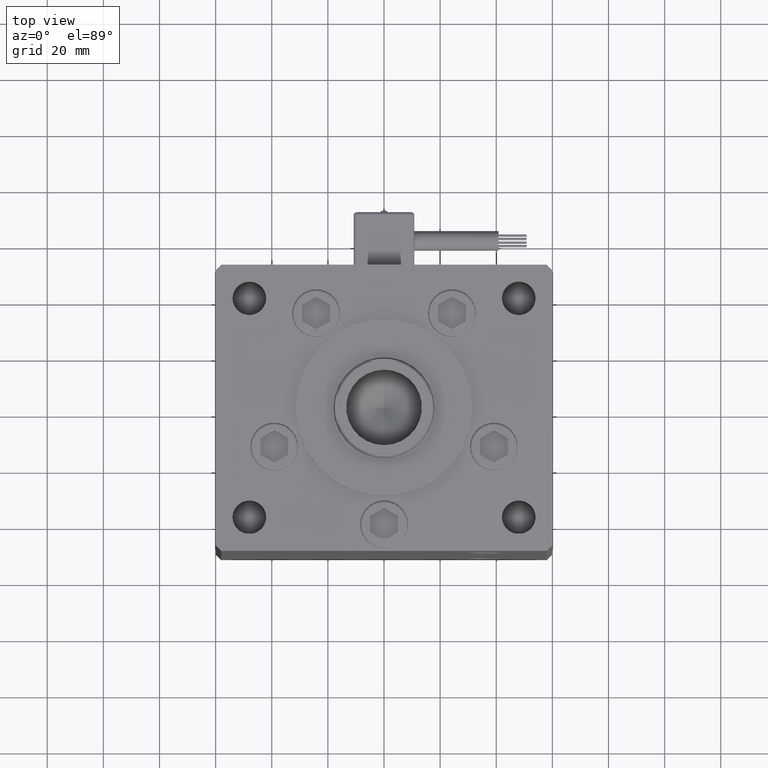
[diagram: clean part render]
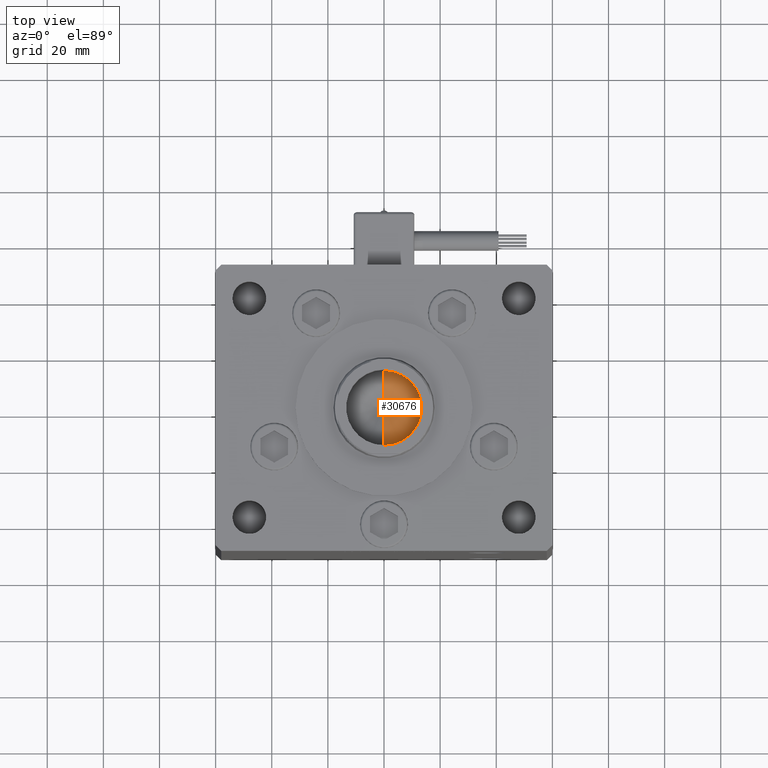
[diagram: same view with one face highlighted and labeled with its STEP entity id]
A machine part, top view. The second image highlights one B-rep face of the part: STEP entity #30676.
In plain terms, the highlighted conical surface has half-angle 59 deg.
Its self-contained STEP definition (entity closure, byte-faithful):
#215 = CONICAL_SURFACE ( 'NONE', #46276, 13.49999999999999467, 1.029744258676653867 ) ;
#343 = CARTESIAN_POINT ( 'NONE',  ( -22.39000000000000057, 1.653273178848926275E-15, 13.49999999999999467 ) ) ;
#1331 = ORIENTED_EDGE ( 'NONE', *, *, #20986, .F. ) ;
#7166 = CARTESIAN_POINT ( 'NONE',  ( -30.50161835687206846, -7.088805540759547745E-15, 0.000000000000000000 ) ) ;
#8952 = VERTEX_POINT ( 'NONE', #42750 ) ;
#13092 = VECTOR ( 'NONE', #17835, 1000.000000000000000 ) ;
#14017 = EDGE_CURVE ( 'NONE', #39150, #33043, #39454, .T. ) ;
#17835 = DIRECTION ( 'NONE',  ( 0.5150380749100547106, 1.049727191138618326E-16, 0.8571673007021120005 ) ) ;
#20986 = EDGE_CURVE ( 'NONE', #39150, #8952, #35700, .T. ) ;
#21264 = VECTOR ( 'NONE', #44039, 1000.000000000000000 ) ;
#22054 = CARTESIAN_POINT ( 'NONE',  ( -22.39000000000000057, 1.653273178848926275E-15, 13.49999999999999467 ) ) ;
#25968 = CARTESIAN_POINT ( 'NONE',  ( -22.39000000000000057, 0.000000000000000000, 0.000000000000000000 ) ) ;
#26197 = ORIENTED_EDGE ( 'NONE', *, *, #44748, .T. ) ;
#30400 = EDGE_LOOP ( 'NONE', ( #1331, #49383, #26197 ) ) ;
#30676 = ADVANCED_FACE ( 'NONE', ( #47327 ), #215, .F. ) ;
#33043 = VERTEX_POINT ( 'NONE', #22054 ) ;
#35700 = LINE ( 'NONE', #47649, #21264 ) ;
#39150 = VERTEX_POINT ( 'NONE', #7166 ) ;
#39454 = LINE ( 'NONE', #343, #13092 ) ;
#40567 = CIRCLE ( 'NONE', #47634, 13.49999999999999467 ) ;
#42750 = CARTESIAN_POINT ( 'NONE',  ( -22.39000000000000057, 0.000000000000000000, -13.49999999999999467 ) ) ;
#42888 = DIRECTION ( 'NONE',  ( 0.000000000000000000, 0.000000000000000000, -1.000000000000000000 ) ) ;
#44039 = DIRECTION ( 'NONE',  ( 0.5150380749100547106, 0.000000000000000000, -0.8571673007021120005 ) ) ;
#44391 = DIRECTION ( 'NONE',  ( 1.000000000000000000, -0.000000000000000000, -0.000000000000000000 ) ) ;
#44748 = EDGE_CURVE ( 'NONE', #33043, #8952, #40567, .T. ) ;
#46276 = AXIS2_PLACEMENT_3D ( 'NONE', #25968, #51748, #42888 ) ;
#47327 = FACE_OUTER_BOUND ( 'NONE', #30400, .T. ) ;
#47634 = AXIS2_PLACEMENT_3D ( 'NONE', #49620, #44391, #48551 ) ;
#47649 = CARTESIAN_POINT ( 'NONE',  ( -22.39000000000000057, 0.000000000000000000, -13.49999999999999467 ) ) ;
#48551 = DIRECTION ( 'NONE',  ( 0.000000000000000000, 0.000000000000000000, -1.000000000000000000 ) ) ;
#49383 = ORIENTED_EDGE ( 'NONE', *, *, #14017, .T. ) ;
#49620 = CARTESIAN_POINT ( 'NONE',  ( -22.39000000000000057, 0.000000000000000000, 0.000000000000000000 ) ) ;
#51748 = DIRECTION ( 'NONE',  ( 1.000000000000000000, -0.000000000000000000, -0.000000000000000000 ) ) ;